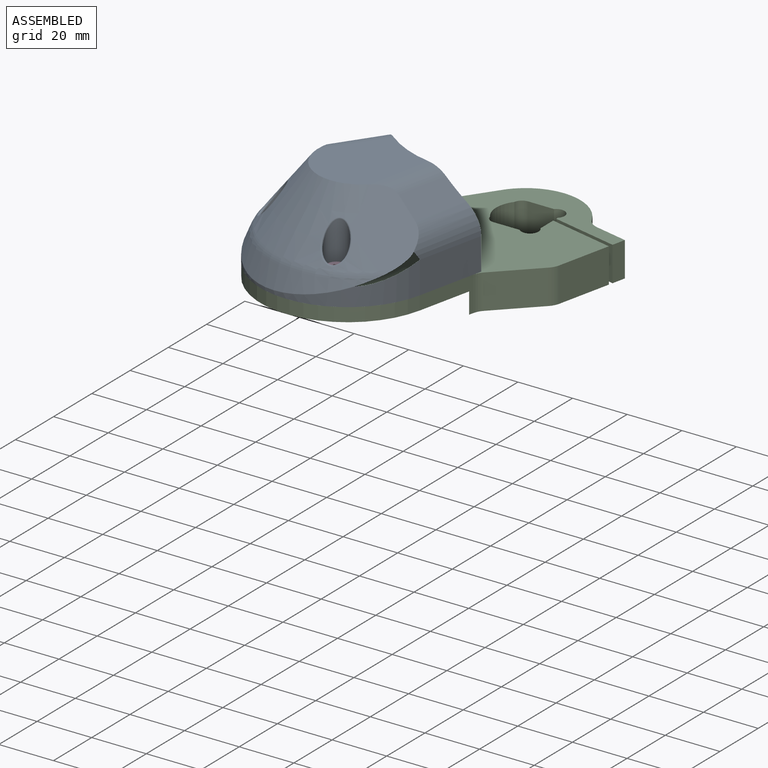
[diagram: assembled view]
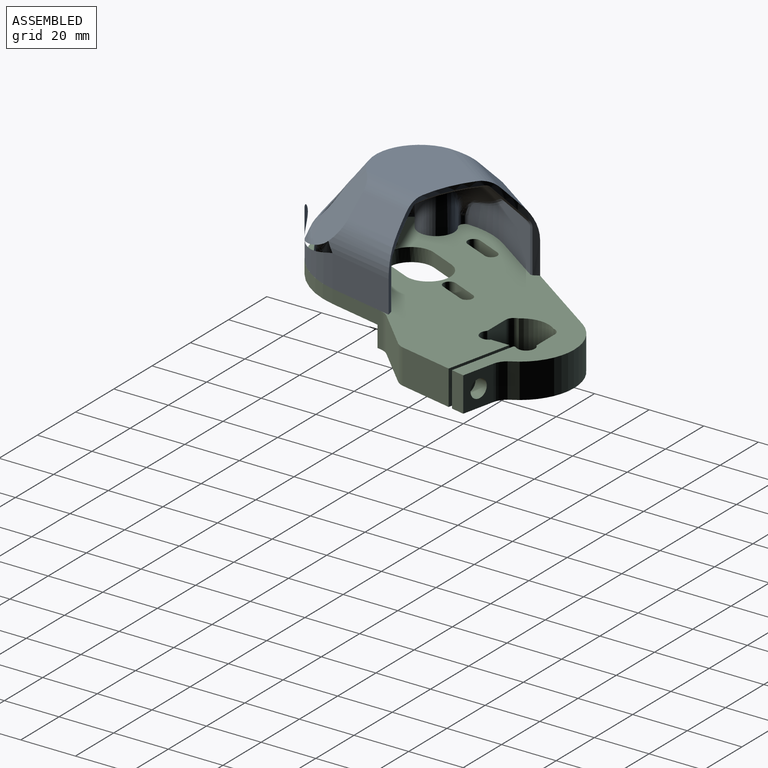
[diagram: assembled view, second angle]
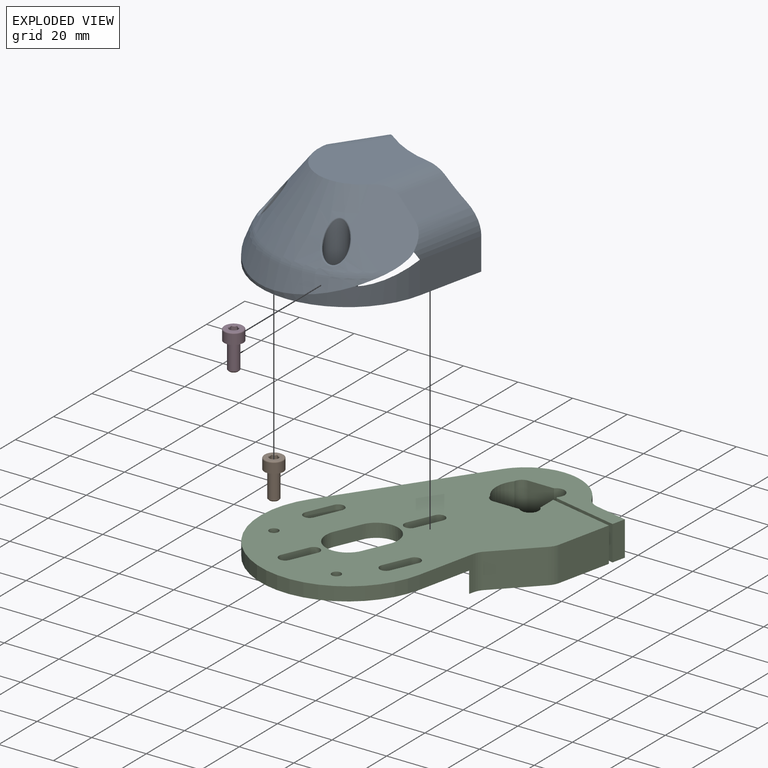
[diagram: exploded view]
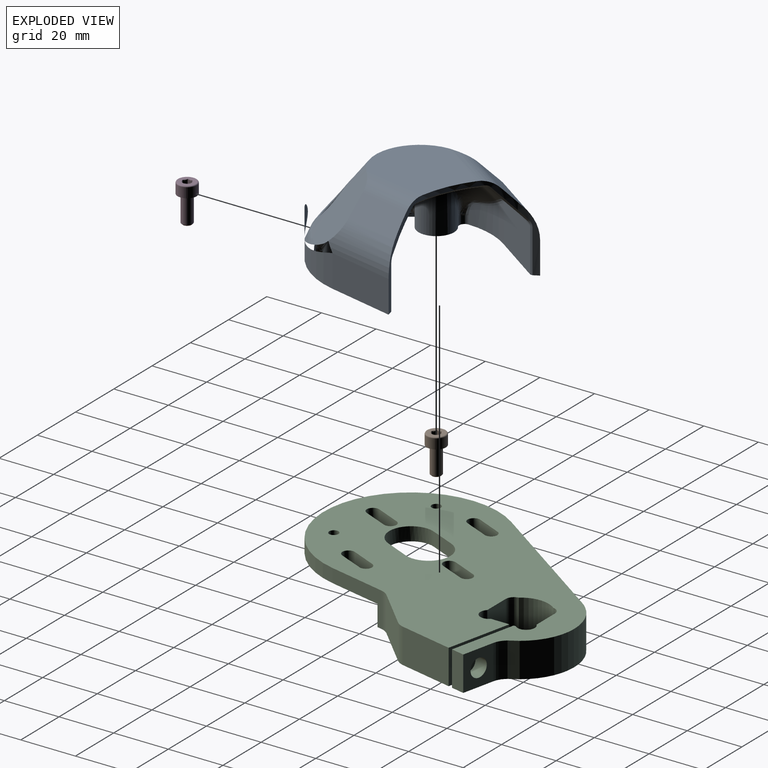
[diagram: exploded view, second angle]
ASSEMBLY  parts=4 mates=3
PART A: 95 faces, bbox 141.4x144.5x106.9 mm
  f0: cylinder r=2mm len=5.5mm, axis (0,0,-1), area 69.1mm2, adj f1,f94
  f1: plane 8.3x8.3mm, normal (0,0,1), area 41.5mm2, adj f0,f2
  f2: cylinder r=4.15mm len=17.85mm, axis (0,0,-1), area 305.2mm2, adj f1,f3
  f3: bspline ~12.31x9.43mm, area 30.4mm2, adj f2,f4
  f4: cone r=16.17mm half-angle=37.8deg, axis (0,0,-1), area 1295.8mm2, adj f3,f5,f9,f89,f90,f91,f92,f93
  f5: bspline ~12.31x9.42mm, area 30.3mm2, adj f4,f6
  f6: cylinder r=4.15mm len=17.85mm, axis (0,0,-1), area 302.7mm2, adj f5,f7
  f7: plane 8.3x8.3mm, normal (0,0,1), area 41.5mm2, adj f6,f8
  f8: cylinder r=2mm len=5.5mm, axis (0,0,-1), area 69.1mm2, adj f7,f94
  f9: plane 90.4x86.63mm, normal (0.54,-0.57,0.61), area 277.2mm2, adj f4,f10,f11,f86,f87,f88,f93
  f10: cylinder r=10mm len=4.25mm, axis (0.73,0.69,0), area 5mm2, adj f9,f88,f89
  f11: plane 20.34x11.25mm, normal (0.69,-0.15,0.71), area 188.1mm2, adj f9,f12,f86,f93
  f12: cylinder r=41.47mm len=48.76mm, axis (0,0,-1), area 181.3mm2, adj f11,f13,f70,f71,f76,f77,f78,f79
  f13: bspline ~2.32x1.62mm, area 2mm2, adj f12,f14,f70,f85
  f14: cylinder r=2.5mm len=16.87mm, axis (-0.57,-0.82,0), area 38.6mm2, adj f13,f15,f68,f69
  f15: plane 19.08x15.93mm, normal (0.82,-0.57,0), area 366mm2, adj f14,f16,f67,f70,f94
  f16: cylinder r=29.5mm len=16.42mm, axis (0,0,-1), area 164.4mm2, adj f15,f17,f62,f63,f64,f65,f66,f94
  f17: bspline ~5.89x5.53mm, area 14.7mm2, adj f16,f18,f62,f66
  f18: bspline ~10.3x7.27mm, area 8.3mm2, adj f17,f19,f61
  f19: cylinder r=6.5mm len=21.45mm, axis (0,0,-1), area 336mm2, adj f18,f20,f59,f60,f61,f62,f94
  f20: bspline ~12.93x8.89mm, area 46mm2, adj f19,f21,f58,f59,f94
  f21: cone r=15.65mm half-angle=22.5deg, axis (0,0,-1), area 169.9mm2, adj f20,f22,f57,f58
  f22: torus R=24.63mm, axis (0,0,1), area 48.9mm2, adj f21,f23,f56,f59
  f23: cone r=14.19mm half-angle=37.8deg, axis (0,0,-1), area 759.9mm2, adj f22,f24,f51,f52,f53,f54,f55,f60
  f24: plane 19.37x15.08mm, normal (0.79,-0.01,-0.61), area 230.4mm2, adj f23,f25,f49,f50,f63,f67,f69
  f25: cylinder r=2mm len=6.47mm, axis (-0.01,-1,0), area 11.8mm2, adj f24,f26,f28,f51
  f26: sphere r=2mm, area 1.2mm2, adj f25,f27,f49
  f27: cylinder r=2mm len=14.85mm, axis (0.57,0.82,0), area 26.6mm2, adj f26,f28,f68,f84
  f28: plane 34.41x31.9mm, normal (0,0,-1), area 751.3mm2, adj f25,f27,f29,f48,f51,f83
  f29: cylinder r=2mm len=5.78mm, axis (-0.73,-0.69,0), area 11.8mm2, adj f28,f30,f51,f52
  f30: sphere r=2mm, area 0.8mm2, adj f29,f31,f48
  f31: cylinder r=2mm len=11.48mm, axis (-0.7,0.09,0.71), area 14.6mm2, adj f30,f32,f47,f52
  f32: plane 18.85x15.39mm, normal (-0.69,0.15,-0.71), area 284mm2, adj f31,f33,f48,f81
  f33: cylinder r=2.5mm len=19.69mm, axis (0.22,0.98,0), area 38.6mm2, adj f32,f34,f47,f80
  f34: plane 22.65x15.93mm, normal (-0.98,0.22,0), area 366mm2, adj f33,f35,f46,f79,f94
  f35: cylinder r=2mm len=3.84mm, axis (-0.18,-0.79,-0.59), area 6.8mm2, adj f34,f36,f47,f52
  f36: bspline ~10.99x6.71mm, area 19.7mm2, adj f35,f37,f46,f52
  f37: bspline ~2.26x1.99mm, area 0.7mm2, adj f36,f38,f45,f46
  f38: bspline ~5.49x4.39mm, area 3.7mm2, adj f37,f39,f46,f53
  f39: bspline ~1.81x1.46mm, area 1.2mm2, adj f38,f40,f44,f46
  f40: bspline ~5.31x4.35mm, area 14.7mm2, adj f39,f41,f43,f46
  f41: cylinder r=2mm len=3.36mm, axis (0,0,-1), area 12.8mm2, adj f40,f42,f46,f94
  f42: cylinder r=6.5mm len=21.45mm, axis (0,0,-1), area 336mm2, adj f41,f43,f44,f54,f56,f57,f94
  f43: bspline ~10.3x7.48mm, area 8.3mm2, adj f40,f42,f44
  f44: bspline ~5.4x5.27mm, area 9.2mm2, adj f39,f42,f43,f53,f54
  f45: cylinder r=7.5mm len=0.44mm, axis (0.73,0.69,0), area 0mm2, adj f37,f52,f53
  f46: cylinder r=29.5mm len=14.99mm, axis (0,0,-1), area 164.4mm2, adj f34,f36,f37,f38,f39,f40,f41,f94
  f47: bspline ~1.79x1.14mm, area 1.4mm2, adj f31,f33,f35,f52
  f48: cylinder r=2mm len=16.99mm, axis (0.22,0.98,0), area 26.7mm2, adj f28,f30,f32,f82
  f49: cylinder r=2mm len=11.41mm, axis (-0.54,0.46,-0.71), area 14.6mm2, adj f24,f26,f68,f69
  f50: cylinder r=7.5mm len=0.49mm, axis (-0.01,-1,0), area 0mm2, adj f24,f55,f64
  f51: torus R=13.96mm, axis (0,0,1), area 63.1mm2, adj f23,f25,f28,f29
  f52: plane 19.37x15.97mm, normal (-0.54,0.57,-0.61), area 230.4mm2, adj f23,f29,f31,f35,f36,f45,f47
  f53: torus R=24.63mm, axis (0,0,1), area 2.3mm2, adj f23,f38,f44,f45
  f54: bspline ~20.07x16.23mm, area 142.6mm2, adj f23,f42,f44,f56
  f55: torus R=24.63mm, axis (0,0,1), area 2.3mm2, adj f23,f50,f61,f65
  f56: bspline ~5.4x5.15mm, area 9.6mm2, adj f22,f42,f54,f57
  f57: bspline ~12.93x8.54mm, area 46mm2, adj f21,f42,f56,f58,f94
  f58: cylinder r=29.5mm len=30.9mm, axis (0,0,-1), area 62.8mm2, adj f20,f21,f57,f94
  f59: bspline ~5.14x4.76mm, area 9.6mm2, adj f19,f20,f22,f60
  f60: bspline ~19.65x17.6mm, area 142.6mm2, adj f19,f23,f59,f61
  f61: bspline ~5.4x5.38mm, area 9.2mm2, adj f18,f19,f55,f60,f66
  f62: cylinder r=2mm len=3.18mm, axis (0,0,-1), area 12.8mm2, adj f16,f17,f19,f94
  f63: bspline ~11.42x6.71mm, area 19.7mm2, adj f16,f24,f64,f67
  f64: bspline ~2.89x1.89mm, area 0.7mm2, adj f16,f50,f63,f65
  f65: bspline ~7.87x3.21mm, area 3.7mm2, adj f16,f55,f64,f66
  f66: bspline ~1.93x1.46mm, area 1.2mm2, adj f16,f17,f61,f65
  f67: cylinder r=2mm len=3.75mm, axis (-0.46,-0.67,-0.59), area 6.8mm2, adj f15,f24,f63,f69
  f68: plane 23.14x18.36mm, normal (0.58,-0.4,-0.71), area 284mm2, adj f14,f27,f49,f85
  f69: bspline ~1.79x1.2mm, area 1.4mm2, adj f14,f24,f49,f67
  f70: plane 15.93x0.83mm, normal (1,-0.04,0), area 13.3mm2, adj f12,f13,f15,f94
  f71: plane 20.54x14.21mm, normal (-0.82,0.57,0), area 294.4mm2, adj f12,f72,f76,f94
  f72: cylinder r=32mm len=63.24mm, axis (0,0,-1), area 637mm2, adj f71,f73,f74,f75,f78,f87,f89,f90
  f73: bspline ~7.22x6.69mm, area 4.2mm2, adj f72,f76,f90
  f74: cylinder r=10mm len=4.84mm, axis (-0.01,-1,0), area 5mm2, adj f72,f89,f90
  f75: cone r=17.95mm half-angle=22.5deg, axis (0,0,-1), area 412.5mm2, adj f72,f88,f89
  f76: cylinder r=15mm len=24.84mm, axis (0.57,0.82,0), area 285.6mm2, adj f12,f71,f73,f77,f90
  f77: plane 21.47x16.2mm, normal (-0.58,0.4,0.71), area 188.1mm2, adj f12,f76,f90,f91
  f78: plane 24.38x11.79mm, normal (0.98,-0.22,0), area 294.4mm2, adj f12,f72,f86,f94
  f79: plane 15.93x0.59mm, normal (-0.71,0.7,0), area 13.3mm2, adj f12,f34,f80,f94
  f80: bspline ~2.32x1.4mm, area 2mm2, adj f12,f33,f79,f81
  f81: bspline ~12.04x11.77mm, area 16.1mm2, adj f12,f32,f80,f82
  f82: bspline ~2.03x1.37mm, area 2mm2, adj f12,f48,f81,f83
  f83: cone r=42.25mm half-angle=45deg, axis (0,0,-1), area 27.1mm2, adj f12,f28,f82,f84
  f84: bspline ~1.89x1.53mm, area 2mm2, adj f12,f27,f83,f85
  f85: bspline ~11.77x9.8mm, area 16.1mm2, adj f12,f13,f68,f84
  f86: cylinder r=15mm len=27.48mm, axis (-0.22,-0.98,0), area 285.6mm2, adj f9,f11,f12,f78,f87
  f87: bspline ~37.32x34.84mm, area 856.8mm2, adj f9,f72,f86,f88
  f88: cylinder r=32mm len=18.74mm, axis (0,0,-1), area 179.4mm2, adj f9,f10,f75,f87,f89
  f89: torus R=24.63mm, axis (0,0,1), area 206.2mm2, adj f4,f10,f72,f74,f75,f88
  f90: plane 23.51x18.77mm, normal (-0.79,0.01,0.61), area 277.2mm2, adj f4,f72,f73,f74,f76,f77,f91
  f91: cylinder r=10mm len=25.13mm, axis (-0.57,-0.82,0), area 165.7mm2, adj f4,f12,f77,f90,f92
  f92: plane 35.83x32mm, normal (0,0,1), area 763.9mm2, adj f4,f12,f91,f93
  f93: cylinder r=10mm len=26.59mm, axis (-0.22,-0.98,0), area 165.7mm2, adj f4,f9,f11,f12,f92
  f94: plane 71.19x69.1mm, normal (0,0,-1), area 652.2mm2, adj f0,f8,f12,f15,f16,f19,f20,f34
PART B: 29 faces, bbox 14x7.6x7.6 mm
  f0: cone r=0.75mm half-angle=60deg, axis (-1,0,0), area 8.2mm2, adj f13,f14,f15,f16,f17,f18
  f1: torus R=3.1mm, axis (-1,0,0), area 13.2mm2, adj f2,f25
  f2: cylinder r=3.5mm len=7mm, axis (-1,0,0), area 79.2mm2, adj f1,f27
  f3: torus R=2.35mm, axis (-1,0,0), area 3.4mm2, adj f4,f27
  f4: cone r=2.09mm half-angle=20.6deg, axis (-1,0,0), area 5.6mm2, adj f3,f5
  f5: torus R=2.2mm, axis (-1,0,0), area 0.9mm2, adj f4,f6
  f6: cylinder r=2mm len=8.97mm, axis (-1,0,0), area 112.7mm2, adj f5,f7
  f7: cone r=1.79mm half-angle=45deg, axis (-1,0,0), area 6.8mm2, adj f6,f26
  f8: plane 2.6x1.5mm, normal (0,0.87,0.5), area 4.3mm2, adj f9,f10,f15,f16,f25,f28
  f9: plane 2.6x1.73mm, normal (0,0,1), area 4.3mm2, adj f8,f11,f14,f15,f24,f25
  f10: plane 2.6x1.5mm, normal (0,0.87,-0.5), area 4.3mm2, adj f8,f12,f16,f17,f23,f25
  f11: plane 2.6x1.5mm, normal (0,-0.87,0.5), area 4.3mm2, adj f9,f13,f14,f19,f22,f25
  f12: plane 2.6x1.73mm, normal (0,0,-1), area 4.3mm2, adj f10,f17,f18,f19,f21,f25
  f13: plane 1.5x0.43mm, normal (-1,0,0), area 0.1mm2, adj f0,f11,f19
  f14: plane 1.3x0.75mm, normal (-1,0,0), area 0.1mm2, adj f0,f9,f11
  f15: plane 1.3x0.75mm, normal (-1,0,0), area 0.1mm2, adj f0,f8,f9
  f16: plane 1.5x0.43mm, normal (-1,0,0), area 0.1mm2, adj f0,f8,f10
  f17: plane 1.3x0.75mm, normal (-1,0,0), area 0.1mm2, adj f0,f10,f12
  f18: plane 1.3x0.75mm, normal (-1,0,0), area 0.1mm2, adj f0,f12,f19
  f19: plane 2.6x1.5mm, normal (0,-0.87,-0.5), area 4.3mm2, adj f11,f12,f13,f18,f20,f25
  f20: cone r=1.61mm half-angle=45deg, axis (-1,0,0), area 0.4mm2, adj f19,f25
  f21: cone r=1.61mm half-angle=45deg, axis (-1,0,0), area 0.4mm2, adj f12,f25
  f22: cone r=1.61mm half-angle=45deg, axis (-1,0,0), area 0.4mm2, adj f11,f25
  f23: cone r=1.61mm half-angle=45deg, axis (-1,0,0), area 0.4mm2, adj f10,f25
  f24: cone r=1.61mm half-angle=45deg, axis (-1,0,0), area 0.4mm2, adj f9,f25
  f25: plane 6.2x6.2mm, normal (-1,0,0), area 20.9mm2, adj f1,f8,f9,f10,f11,f12,f19,f20
  f26: plane 3.14x3.14mm, normal (1,0,0), area 7.7mm2, adj f7
  f27: plane 7x7mm, normal (1,0,0), area 21.1mm2, adj f2,f3
  f28: cone r=1.61mm half-angle=45deg, axis (-1,0,0), area 0.4mm2, adj f8,f25
PART C: 51 faces, bbox 91.4x109.7x12.7 mm
  f0: cone r=1.25mm half-angle=59deg, axis (0.22,-0.98,0), area 22.9mm2, adj f2
  f1: plane 73.47x67.92mm, normal (0,0,1), area 3159.9mm2, adj f4,f5,f6,f7,f8,f9,f10,f11
  f2: cylinder r=2.5mm len=22.56mm, axis (-0.22,0.98,0), area 345.6mm2, adj f0,f38
  f3: cylinder r=3.3mm len=7.53mm, axis (-0.22,0.98,0), area 103.7mm2, adj f28,f45
  f4: cylinder r=31.77mm len=50.5mm, axis (0,0,-1), area 513.7mm2, adj f1,f31,f33,f46
  f5: cylinder r=1.7mm len=5mm, axis (0,0,1), area 53.4mm2, adj f1,f48
  f6: cylinder r=1.7mm len=5mm, axis (0,0,1), area 53.4mm2, adj f1,f48
  f7: cylinder r=2.25mm len=5mm, axis (0,0,1), area 35.3mm2, adj f1,f8,f10,f48
  f8: plane 9.16x5mm, normal (-0.92,-0.4,0), area 50mm2, adj f1,f7,f9,f48
  f9: cylinder r=2.25mm len=5mm, axis (0,0,1), area 35.3mm2, adj f1,f8,f10,f48
  f10: plane 9.16x5mm, normal (0.92,0.4,0), area 50mm2, adj f1,f7,f9,f48
  f11: cylinder r=2.25mm len=5mm, axis (0,0,1), area 35.3mm2, adj f1,f12,f14,f48
  f12: plane 9.16x5mm, normal (0.92,0.4,0), area 50mm2, adj f1,f11,f13,f48
  f13: cylinder r=2.25mm len=5mm, axis (0,0,1), area 35.3mm2, adj f1,f12,f14,f48
  f14: plane 9.16x5mm, normal (-0.92,-0.4,0), area 50mm2, adj f1,f11,f13,f48
  f15: cylinder r=8mm len=15.33mm, axis (0,0,1), area 125.7mm2, adj f1,f16,f18,f48
  f16: plane 9.16x5mm, normal (0.92,0.4,0), area 50mm2, adj f1,f15,f17,f48
  f17: cylinder r=8mm len=15.33mm, axis (0,0,1), area 125.7mm2, adj f1,f16,f18,f48
  f18: plane 9.16x5mm, normal (-0.92,-0.4,0), area 50mm2, adj f1,f15,f17,f48
  f19: cylinder r=2.25mm len=5mm, axis (0,0,1), area 35.3mm2, adj f1,f20,f22,f48
  f20: plane 9.16x5mm, normal (-0.92,-0.4,0), area 50mm2, adj f1,f19,f21,f48
  f21: cylinder r=2.25mm len=5mm, axis (0,0,1), area 35.3mm2, adj f1,f20,f22,f48
  f22: plane 9.16x5mm, normal (0.92,0.4,0), area 50mm2, adj f1,f19,f21,f48
  f23: cylinder r=2.25mm len=5mm, axis (0,0,1), area 35.3mm2, adj f1,f24,f26,f48
  f24: plane 9.16x5mm, normal (0.92,0.4,0), area 50mm2, adj f1,f23,f25,f48
  f25: cylinder r=2.25mm len=5mm, axis (0,0,1), area 35.3mm2, adj f1,f24,f26,f48
  f26: plane 9.16x5mm, normal (-0.92,-0.4,0), area 50mm2, adj f1,f23,f25,f48
  f27: plane 12.7x4.88mm, normal (0.98,0.22,0), area 63.5mm2, adj f28,f45,f46,f48
  f28: plane 12.7x12mm, normal (0.22,-0.98,0), area 121.9mm2, adj f3,f27,f29,f46,f48
  f29: cylinder r=6.35mm len=12.7mm, axis (0,0,1), area 70.7mm2, adj f28,f30,f46,f48
  f30: cylinder r=20mm len=34.23mm, axis (0,0,1), area 523.5mm2, adj f29,f31,f46,f48
  f31: plane 50.44x34.91mm, normal (-0.82,-0.57,0), area 624.7mm2, adj f1,f4,f30,f32,f46,f48
  f32: cylinder r=32mm len=63.24mm, axis (0,0,1), area 564.5mm2, adj f1,f31,f33,f48
  f33: plane 21.19x12.7mm, normal (0.98,0.22,0), area 121.5mm2, adj f1,f4,f32,f34,f46,f48
  f34: cylinder r=6.35mm len=12.7mm, axis (0,0,1), area 45.6mm2, adj f33,f35,f46,f48
  f35: plane 13.98x13.94mm, normal (0.71,0.71,0), area 250.8mm2, adj f34,f36,f46,f48
  f36: cylinder r=6.35mm len=12.7mm, axis (0,0,1), area 45.6mm2, adj f35,f37,f46,f48
  f37: plane 19.68x12.7mm, normal (0.98,0.22,0), area 256mm2, adj f36,f38,f46,f48
  f38: plane 24.11x12.7mm, normal (0.22,-0.98,0), area 294.1mm2, adj f2,f37,f39,f46,f48
  f39: plane 12.7x6.74mm, normal (-1,0,0), area 85.7mm2, adj f38,f40,f46,f48
  f40: cylinder r=3.17mm len=12.7mm, axis (0,0,-1), area 126.7mm2, adj f39,f41,f46,f48
  f41: plane 12.7x9.51mm, normal (0,-1,0), area 120.8mm2, adj f40,f42,f46,f48
  f42: cylinder r=3.17mm len=12.7mm, axis (0,0,-1), area 57mm2, adj f41,f43,f46,f48
  f43: cylinder r=10.32mm len=12.7mm, axis (0,0,1), area 173.7mm2, adj f42,f44,f46,f48
  f44: cylinder r=3.17mm len=12.7mm, axis (0,0,-1), area 57mm2, adj f43,f46,f47,f48
  f45: plane 24.44x12.7mm, normal (-0.22,0.98,0), area 283.8mm2, adj f3,f27,f46,f48,f49
  f46: plane 74x64.81mm, normal (0,0,1), area 1884.4mm2, adj f4,f27,f28,f29,f30,f31,f33,f34
  f47: plane 12.7x9.51mm, normal (0,1,0), area 120.8mm2, adj f44,f46,f48,f50
  f48: plane 109.69x91.42mm, normal (0,0,-1), area 5044.4mm2, adj f5,f6,f7,f8,f9,f10,f11,f12
  f49: plane 12.7x0.79mm, normal (-1,0,0), area 10mm2, adj f45,f46,f48,f50
  f50: cylinder r=3.17mm len=12.7mm, axis (0,0,-1), area 126.7mm2, adj f46,f47,f48,f49
PART D: same geometry as B
PLACE A t=(-835.12,259.77,755.19)mm
PLACE B rot(axis=(0.71,0,-0.71),180deg) t=(-861.07,245.37,760.69)mm
PLACE C rot(axis=(1,0,0),180deg) t=(-813.52,309.17,755.19)mm
PLACE D rot(axis=(0.71,0,-0.71),180deg) t=(-828.08,230.95,760.69)mm
MATE fastened D.f0 <-> A.f0  axis (0,0,-1) through (-828.08,230.95,760.69)mm
MATE fastened C.f5 <-> A.f6  axis (0,0,-1) through (-861.07,245.37,755.19)mm
MATE fastened B.f0 <-> A.f6  axis (0,0,-1) through (-861.07,245.37,760.69)mm
